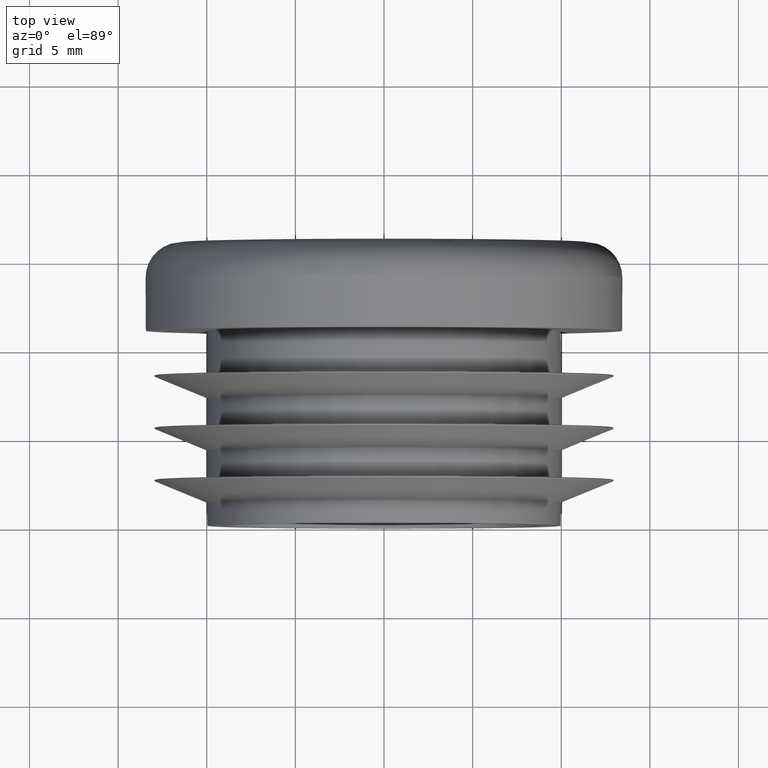
[diagram: clean part render]
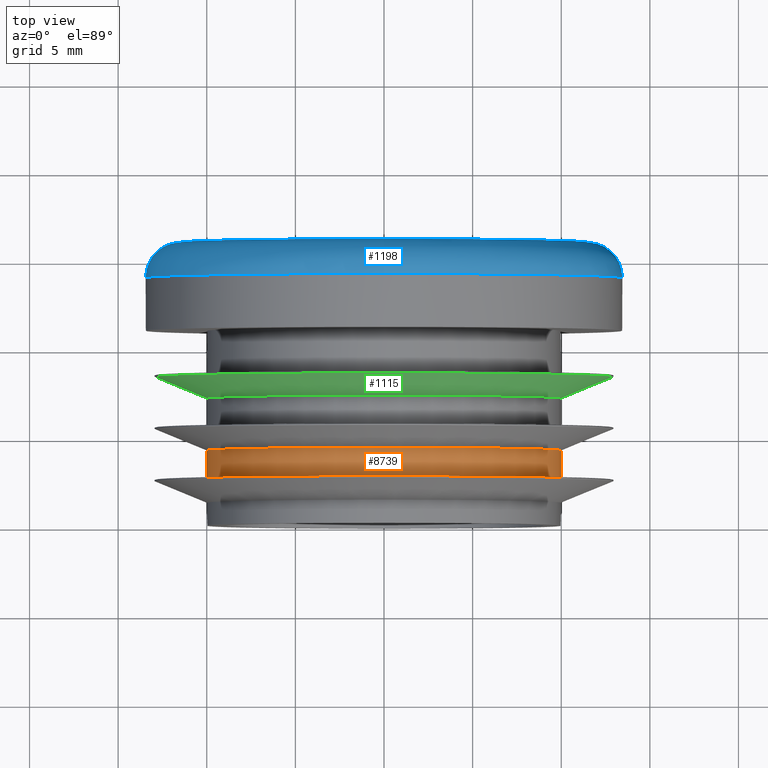
[diagram: same view with three faces highlighted in distinct colors, each labeled with its STEP entity id]
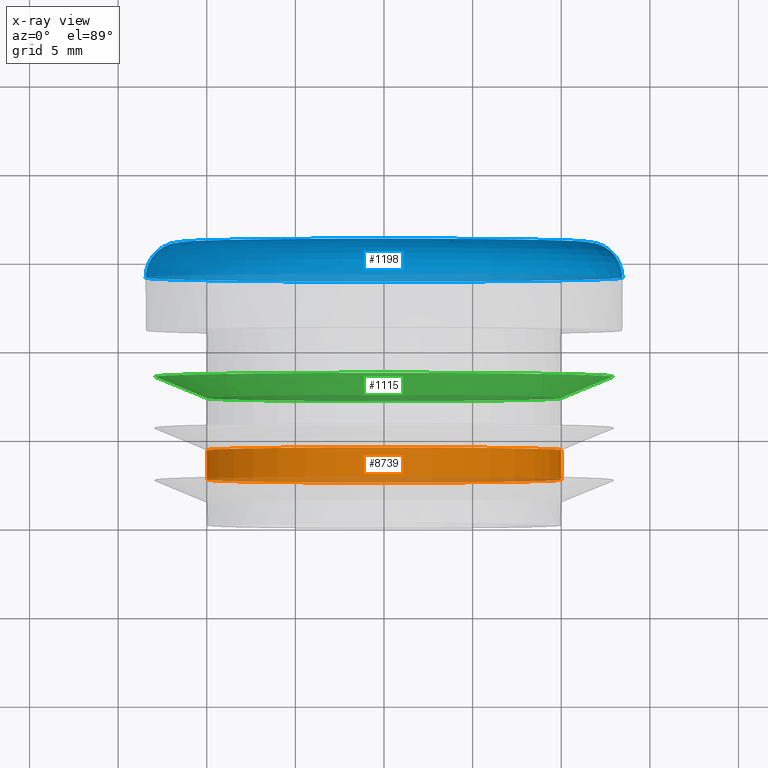
[diagram: x-ray of the same camera — body ghosted, the three highlighted faces saturated]
A machine part, top view with three faces highlighted in distinct colors.
The next image is the same camera in x-ray (body ghosted, the three faces saturated) — at least one of them is partly hidden behind the body in this view.
Their STEP definitions:

[orange] entity #8739 — the highlighted cylindrical surface (bore or boss wall) has radius 10 mm, axis along (-0, -1, -0).
#222 = VERTEX_POINT ( 'NONE', #7177 ) ;
#2558 = DIRECTION ( 'NONE',  ( -0.000000000000000000, -1.000000000000000000, -0.000000000000000000 ) ) ;
#2646 = ORIENTED_EDGE ( 'NONE', *, *, #6355, .F. ) ;
#2743 = FACE_OUTER_BOUND ( 'NONE', #9295, .T. ) ;
#3839 = VERTEX_POINT ( 'NONE', #5421 ) ;
#4116 = DIRECTION ( 'NONE',  ( -1.000000000000000000, -1.049507702965968292E-14, 0.000000000000000000 ) ) ;
#4456 = CYLINDRICAL_SURFACE ( 'NONE', #5047, 10.00000000000000000 ) ;
#5047 = AXIS2_PLACEMENT_3D ( 'NONE', #8654, #2558, #5997 ) ;
#5421 = CARTESIAN_POINT ( 'NONE',  ( -10.00000000000000000, 2.599999999999792699, 0.000000000000000000 ) ) ;
#5775 = DIRECTION ( 'NONE',  ( -1.047444401652940164E-14, 1.000000000000000000, 0.000000000000000000 ) ) ;
#5997 = DIRECTION ( 'NONE',  ( 0.000000000000000000, 0.000000000000000000, -1.000000000000000000 ) ) ;
#6139 = AXIS2_PLACEMENT_3D ( 'NONE', #9257, #6723, #4116 ) ;
#6355 = EDGE_CURVE ( 'NONE', #222, #222, #8411, .T. ) ;
#6465 = CIRCLE ( 'NONE', #6139, 10.00000000000000000 ) ;
#6647 = FACE_OUTER_BOUND ( 'NONE', #10900, .T. ) ;
#6723 = DIRECTION ( 'NONE',  ( 1.047444401652940164E-14, -1.000000000000000000, -0.000000000000000000 ) ) ;
#7177 = CARTESIAN_POINT ( 'NONE',  ( -10.00000000000004619, 4.249999999999882760, 0.000000000000000000 ) ) ;
#7231 = AXIS2_PLACEMENT_3D ( 'NONE', #8152, #5775, #10760 ) ;
#7271 = ORIENTED_EDGE ( 'NONE', *, *, #10108, .F. ) ;
#8152 = CARTESIAN_POINT ( 'NONE',  ( -4.451638707024982722E-14, 4.249999999999987566, 0.000000000000000000 ) ) ;
#8411 = CIRCLE ( 'NONE', #7231, 10.00000000000000000 ) ;
#8654 = CARTESIAN_POINT ( 'NONE',  ( 0.000000000000000000, 11.00000000000000000, 0.000000000000000000 ) ) ;
#8739 = ADVANCED_FACE ( 'NONE', ( #6647, #2743 ), #4456, .T. ) ;
#9257 = CARTESIAN_POINT ( 'NONE',  ( 0.000000000000000000, 2.599999999999897504, 0.000000000000000000 ) ) ;
#9295 = EDGE_LOOP ( 'NONE', ( #2646 ) ) ;
#10108 = EDGE_CURVE ( 'NONE', #3839, #3839, #6465, .T. ) ;
#10760 = DIRECTION ( 'NONE',  ( -1.000000000000000000, -1.049507702965968292E-14, 0.000000000000000000 ) ) ;
#10900 = EDGE_LOOP ( 'NONE', ( #7271 ) ) ;

[blue] entity #1198 — the highlighted toroidal blend (fillet) surface has major radius 11.45 mm and minor (blend) radius 2 mm.
#1198 = ADVANCED_FACE ( 'NONE', ( #1998, #7467 ), #6692, .T. ) ;
#1217 = VERTEX_POINT ( 'NONE', #7954 ) ;
#1514 = EDGE_LOOP ( 'NONE', ( #7166 ) ) ;
#1846 = CARTESIAN_POINT ( 'NONE',  ( 0.000000000000000000, 14.00000000000000000, 0.000000000000000000 ) ) ;
#1998 = FACE_OUTER_BOUND ( 'NONE', #4840, .T. ) ;
#2039 = DIRECTION ( 'NONE',  ( 0.000000000000000000, 0.000000000000000000, 1.000000000000000000 ) ) ;
#2904 = CARTESIAN_POINT ( 'NONE',  ( 0.000000000000000000, 16.00000000000000000, 11.44999999999999751 ) ) ;
#3663 = AXIS2_PLACEMENT_3D ( 'NONE', #5508, #7145, #2039 ) ;
#4181 = AXIS2_PLACEMENT_3D ( 'NONE', #1846, #8129, #5515 ) ;
#4840 = EDGE_LOOP ( 'NONE', ( #8039 ) ) ;
#5253 = EDGE_CURVE ( 'NONE', #1217, #1217, #6860, .T. ) ;
#5508 = CARTESIAN_POINT ( 'NONE',  ( 0.000000000000000000, 16.00000000000000000, 0.000000000000000000 ) ) ;
#5515 = DIRECTION ( 'NONE',  ( 0.000000000000000000, 0.000000000000000000, 1.000000000000000000 ) ) ;
#6001 = AXIS2_PLACEMENT_3D ( 'NONE', #6541, #6720, #6683 ) ;
#6541 = CARTESIAN_POINT ( 'NONE',  ( 0.000000000000000000, 14.00000000000000000, 0.000000000000000000 ) ) ;
#6683 = DIRECTION ( 'NONE',  ( 0.000000000000000000, 0.000000000000000000, 1.000000000000000000 ) ) ;
#6692 = TOROIDAL_SURFACE ( 'NONE', #6001, 11.44999999999999751, 2.000000000000000000 ) ;
#6720 = DIRECTION ( 'NONE',  ( 0.000000000000000000, 1.000000000000000000, 0.000000000000000000 ) ) ;
#6860 = CIRCLE ( 'NONE', #4181, 13.44999999999999929 ) ;
#7145 = DIRECTION ( 'NONE',  ( 0.000000000000000000, 1.000000000000000000, 0.000000000000000000 ) ) ;
#7166 = ORIENTED_EDGE ( 'NONE', *, *, #5253, .F. ) ;
#7467 = FACE_OUTER_BOUND ( 'NONE', #1514, .T. ) ;
#7475 = EDGE_CURVE ( 'NONE', #9215, #9215, #8261, .T. ) ;
#7954 = CARTESIAN_POINT ( 'NONE',  ( 0.000000000000000000, 14.00000000000000000, 13.44999999999999929 ) ) ;
#8039 = ORIENTED_EDGE ( 'NONE', *, *, #7475, .F. ) ;
#8129 = DIRECTION ( 'NONE',  ( -0.000000000000000000, -1.000000000000000000, -0.000000000000000000 ) ) ;
#8261 = CIRCLE ( 'NONE', #3663, 11.44999999999999751 ) ;
#9215 = VERTEX_POINT ( 'NONE', #2904 ) ;

[green] entity #1115 — the highlighted conical surface has half-angle 67.59 deg.
#234 = FACE_BOUND ( 'NONE', #6883, .T. ) ;
#468 = DIRECTION ( 'NONE',  ( -1.000000000000000000, -1.049507702965960404E-14, 0.000000000000000000 ) ) ;
#1115 = ADVANCED_FACE ( 'NONE', ( #2545, #234 ), #5752, .T. ) ;
#1509 = AXIS2_PLACEMENT_3D ( 'NONE', #3836, #10576, #6392 ) ;
#1879 = AXIS2_PLACEMENT_3D ( 'NONE', #9795, #10509, #5396 ) ;
#2165 = DIRECTION ( 'NONE',  ( -1.047444401652940164E-14, 1.000000000000000000, 0.000000000000000000 ) ) ;
#2545 = FACE_OUTER_BOUND ( 'NONE', #10975, .T. ) ;
#3241 = VERTEX_POINT ( 'NONE', #7215 ) ;
#3836 = CARTESIAN_POINT ( 'NONE',  ( -8.802488322593718299E-14, 8.403776189650525197, 0.000000000000000000 ) ) ;
#4252 = CIRCLE ( 'NONE', #1879, 10.00000000000000000 ) ;
#4892 = ORIENTED_EDGE ( 'NONE', *, *, #7132, .T. ) ;
#5396 = DIRECTION ( 'NONE',  ( -1.000000000000000000, -1.049507702965968292E-14, 0.000000000000000000 ) ) ;
#5752 = CONICAL_SURFACE ( 'NONE', #7479, 10.00000000000007461, 1.179659376938436921 ) ;
#6194 = EDGE_CURVE ( 'NONE', #3241, #3241, #10171, .T. ) ;
#6392 = DIRECTION ( 'NONE',  ( 1.000000000000000000, 1.047354918337303050E-14, 0.000000000000000000 ) ) ;
#6883 = EDGE_LOOP ( 'NONE', ( #4892 ) ) ;
#7132 = EDGE_CURVE ( 'NONE', #7181, #7181, #4252, .T. ) ;
#7181 = VERTEX_POINT ( 'NONE', #8867 ) ;
#7215 = CARTESIAN_POINT ( 'NONE',  ( 12.91906198721966170, 8.403776189650660200, 0.000000000000000000 ) ) ;
#7252 = CARTESIAN_POINT ( 'NONE',  ( -7.541599691901318247E-14, 7.200000000000142286, 0.000000000000000000 ) ) ;
#7443 = ORIENTED_EDGE ( 'NONE', *, *, #6194, .T. ) ;
#7479 = AXIS2_PLACEMENT_3D ( 'NONE', #7252, #2165, #468 ) ;
#8867 = CARTESIAN_POINT ( 'NONE',  ( -10.00000000000007461, 7.200000000000006395, 0.000000000000000000 ) ) ;
#9795 = CARTESIAN_POINT ( 'NONE',  ( -7.541599691901286692E-14, 7.200000000000112088, 0.000000000000000000 ) ) ;
#10171 = CIRCLE ( 'NONE', #1509, 12.91906198721974874 ) ;
#10509 = DIRECTION ( 'NONE',  ( -1.047444401652940164E-14, 1.000000000000000000, 0.000000000000000000 ) ) ;
#10576 = DIRECTION ( 'NONE',  ( 1.047444401652940164E-14, -1.000000000000000000, -0.000000000000000000 ) ) ;
#10975 = EDGE_LOOP ( 'NONE', ( #7443 ) ) ;